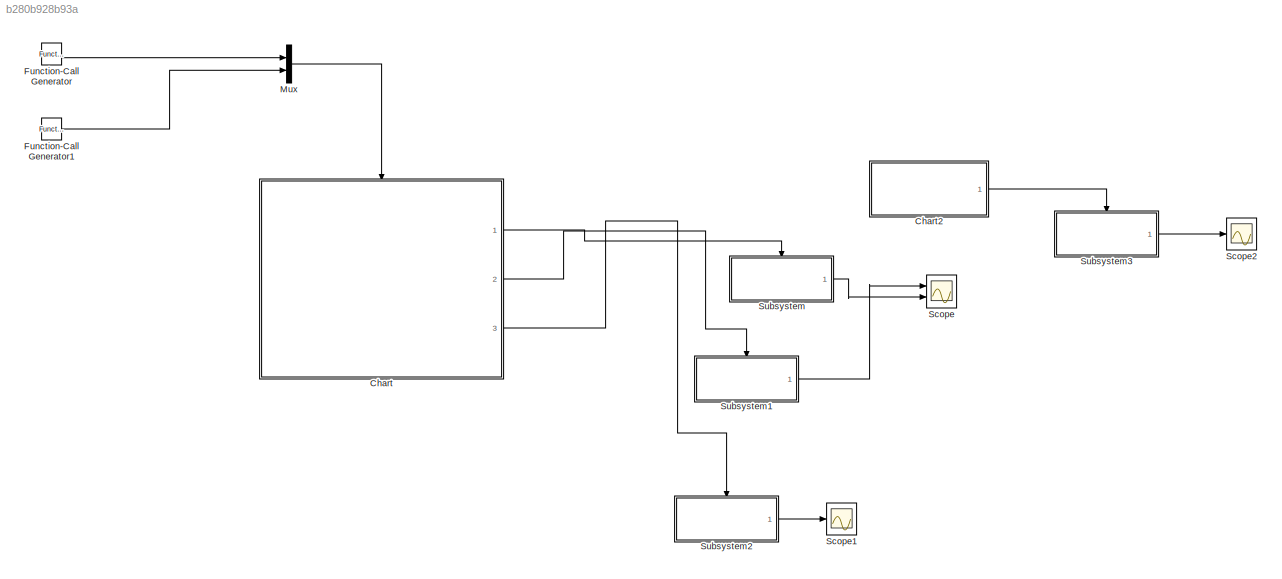
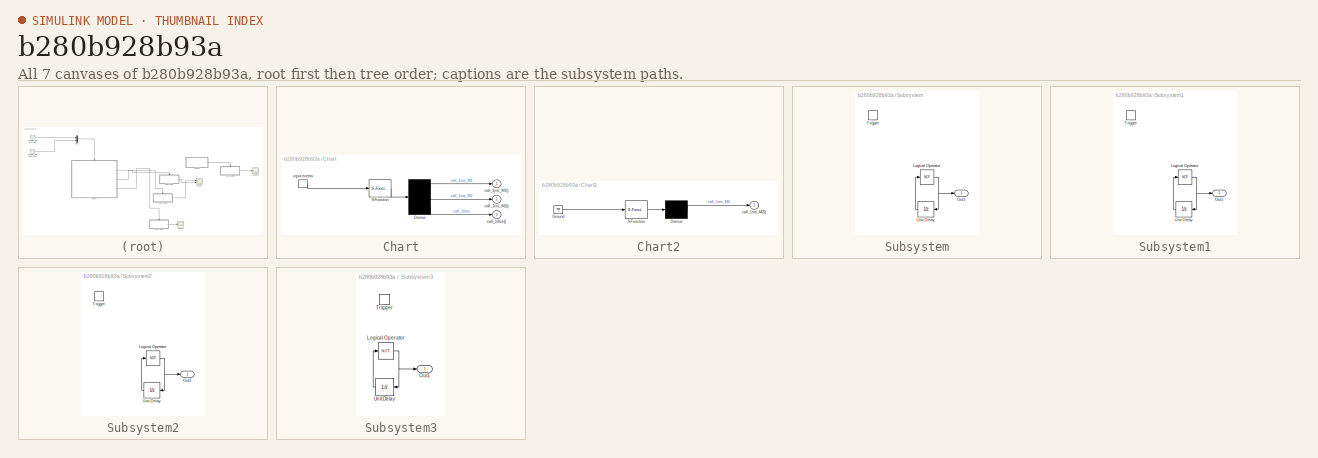
[diagram: thumbnail index - all 7 canvases of the model, root first then tree order]
MODEL slx_b280b928b93a
KIND model
CONFIG AbsTol = auto
CONFIG EnableMultiTasking = off
CONFIG FixedStep = 10^-3
CONFIG MaxStep = auto
CONFIG MinStep = auto
CONFIG RelTol = 1e-3
CONFIG SampleTimeConstraint = Unconstrained
CONFIG SolverName = FixedStepDiscrete
CONFIG StartTime = 0.0
CONFIG StopTime = 10.0
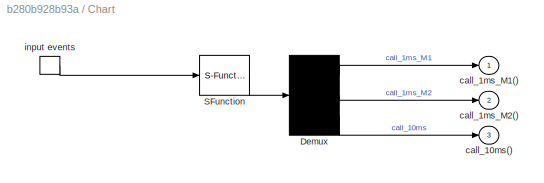
BLOCK [SubSystem] Chart
  ErrorFcn = Stateflow.Translate.translate
  PermitHierarchicalResolution = ExplicitOnly
  Ports = [0, 3, 0, 1]
  RequestExecContextInheritance = off
  SFBlockType = Chart
  ShowPortLabels = FromPortBlockName
  TreatAsAtomicUnit = on
BLOCK [Demux] Chart/ Demux 
  Outputs = 3
  Ports = [1, 3]
BLOCK [S-Function] Chart/ SFunction 
  EnableBusSupport = on
  FunctionName = sf_sfun
  PortCounts = [1 1]
  Ports = [1, 1]
  SFcnIsStateOwnerBlock = off
  SFunctionDeploymentMode = off
  Tag = Stateflow S-Function 3
BLOCK [Outport] Chart/call_10ms()
  Port = 3
BLOCK [Outport] Chart/call_1ms_M1()
BLOCK [Outport] Chart/call_1ms_M2()
  Port = 2
BLOCK [TriggerPort] Chart/input events
  Ports = [0, 1]
  ShowOutputPort = on
  StatesWhenEnabling = held
  TriggerType = function-call
  VariantControl = (inherit)
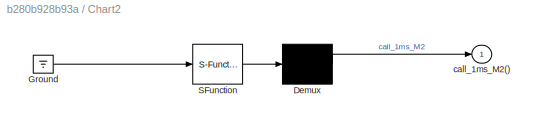
BLOCK [SubSystem] Chart2
  ErrorFcn = Stateflow.Translate.translate
  PermitHierarchicalResolution = ExplicitOnly
  Ports = [0, 1]
  RequestExecContextInheritance = off
  SFBlockType = Chart
  TreatAsAtomicUnit = on
BLOCK [Demux] Chart2/ Demux 
  Outputs = 1
  Ports = [1, 1]
BLOCK [Ground] Chart2/ Ground 
BLOCK [S-Function] Chart2/ SFunction 
  EnableBusSupport = on
  FunctionName = sf_sfun
  PortCounts = [1 1]
  Ports = [1, 1]
  SFcnIsStateOwnerBlock = off
  SFunctionDeploymentMode = off
  Tag = Stateflow S-Function 2
BLOCK [Outport] Chart2/call_1ms_M2()
BLOCK [Reference] Function-Call Generator  REF=simulink/Ports &
Subsystems/Function-Call
Generator
  Ports = [0, 1]
  SourceBlock = simulink/Ports &\nSubsystems/Function-Call\nGenerator
  SourceProductBaseCode = SL
  SourceType = Function-Call Generator
BLOCK [Reference] Function-Call Generator1  REF=simulink/Ports &
Subsystems/Function-Call
Generator
  Ports = [0, 1]
  SourceBlock = simulink/Ports &\nSubsystems/Function-Call\nGenerator
  SourceProductBaseCode = SL
  SourceType = Function-Call Generator
BLOCK [Mux] Mux
  DisplayOption = bar
  Inputs = 2
  Ports = [2, 1]
BLOCK [Scope] Scope
  Floating = off
  NumInputPorts = 2
  Ports = [2]
  ScopeSpecificationString = Simulink.scopes.TimeScopeBlockCfg('CurrentConfiguration', extmgr.ConfigurationSet(extmgr.Configuration('Core','General UI',true),extmgr.Configuration('Core','Source UI',true),extmgr.Configuration('Sources','WiredSimulink',true),extmgr.Configuration('Visuals','Time Domain',true,'SerializedDisplays',{struct('MinYLimReal','-0.125','MaxYLimReal','1.125','YLabelReal','','MinYLimMag','0.00000','MaxYLimM...<+1472ch>
BLOCK [Scope] Scope1
  Floating = off
  NumInputPorts = 1
  Ports = [1]
  ScopeSpecificationString = Simulink.scopes.TimeScopeBlockCfg('CurrentConfiguration', extmgr.ConfigurationSet(extmgr.Configuration('Core','General UI',true),extmgr.Configuration('Core','Source UI',true),extmgr.Configuration('Sources','WiredSimulink',true,'DataLoggingVariableName','ScopeData1'),extmgr.Configuration('Visuals','Time Domain',true,'SerializedDisplays',{struct('MinYLimReal','-0.125','MaxYLimReal','1.125','YLabelRe...<+1438ch>
BLOCK [Scope] Scope2
  Floating = off
  NumInputPorts = 1
  Ports = [1]
  ScopeSpecificationString = Simulink.scopes.TimeScopeBlockCfg('CurrentConfiguration', extmgr.ConfigurationSet(extmgr.Configuration('Core','General UI',true),extmgr.Configuration('Core','Source UI',true),extmgr.Configuration('Sources','WiredSimulink',true,'DataLoggingVariableName','ScopeData2'),extmgr.Configuration('Visuals','Time Domain',true,'SerializedDisplays',{struct('MinYLimReal','-0.125','MaxYLimReal','1.125','YLabelRe...<+1463ch>
BLOCK [SubSystem] Subsystem
  Ports = [0, 1, 0, 1]
  RequestExecContextInheritance = off
BLOCK [Logic] Subsystem/Logical Operator
  AllPortsSameDT = off
  Operator = NOT
  OutDataTypeStr = boolean
  Ports = [1, 1]
BLOCK [Outport] Subsystem/Out1
BLOCK [TriggerPort] Subsystem/Trigger
  PortDimensions = 1
  Ports = []
  StatesWhenEnabling = held
  TriggerType = function-call
  VariantControl = (inherit)
BLOCK [UnitDelay] Subsystem/Unit Delay
  HasFrameUpgradeWarning = on
  SampleTime = -1
BLOCK [SubSystem] Subsystem1
  Ports = [0, 1, 0, 1]
  RequestExecContextInheritance = off
BLOCK [Logic] Subsystem1/Logical Operator
  AllPortsSameDT = off
  Operator = NOT
  OutDataTypeStr = boolean
  Ports = [1, 1]
BLOCK [Outport] Subsystem1/Out1
BLOCK [TriggerPort] Subsystem1/Trigger
  PortDimensions = 1
  Ports = []
  StatesWhenEnabling = held
  TriggerType = function-call
  VariantControl = (inherit)
BLOCK [UnitDelay] Subsystem1/Unit Delay
  HasFrameUpgradeWarning = on
  SampleTime = -1
BLOCK [SubSystem] Subsystem2
  Ports = [0, 1, 0, 1]
  RequestExecContextInheritance = off
BLOCK [Logic] Subsystem2/Logical Operator
  AllPortsSameDT = off
  Operator = NOT
  OutDataTypeStr = boolean
  Ports = [1, 1]
BLOCK [Outport] Subsystem2/Out1
BLOCK [TriggerPort] Subsystem2/Trigger
  PortDimensions = 1
  Ports = []
  StatesWhenEnabling = held
  TriggerType = function-call
  VariantControl = (inherit)
BLOCK [UnitDelay] Subsystem2/Unit Delay
  HasFrameUpgradeWarning = on
  SampleTime = -1
BLOCK [SubSystem] Subsystem3
  Ports = [0, 1, 0, 1]
  RequestExecContextInheritance = off
BLOCK [Logic] Subsystem3/Logical Operator
  AllPortsSameDT = off
  Operator = NOT
  OutDataTypeStr = boolean
  Ports = [1, 1]
BLOCK [Outport] Subsystem3/Out1
BLOCK [TriggerPort] Subsystem3/Trigger
  PortDimensions = 1
  Ports = []
  StatesWhenEnabling = held
  TriggerType = function-call
  VariantControl = (inherit)
BLOCK [UnitDelay] Subsystem3/Unit Delay
  HasFrameUpgradeWarning = on
  SampleTime = -1
LINE Chart2:1 -> Subsystem3:trigger
LINE Chart:1 -> Subsystem:trigger
LINE Chart:2 -> Subsystem1:trigger
LINE Chart:3 -> Subsystem2:trigger
LINE Function-Call Generator1:1 -> Mux:2
LINE Function-Call Generator:1 -> Mux:1
LINE Mux:1 -> Chart:trigger
NET Subsystem/Logical Operator:1 -> Subsystem/Out1:1, Subsystem/Unit Delay:1
LINE Subsystem/Unit Delay:1 -> Subsystem/Logical Operator:1
NET Subsystem1/Logical Operator:1 -> Subsystem1/Out1:1, Subsystem1/Unit Delay:1
LINE Subsystem1/Unit Delay:1 -> Subsystem1/Logical Operator:1
LINE Subsystem1:1 -> Scope:1
NET Subsystem2/Logical Operator:1 -> Subsystem2/Out1:1, Subsystem2/Unit Delay:1
LINE Subsystem2/Unit Delay:1 -> Subsystem2/Logical Operator:1
LINE Subsystem2:1 -> Scope1:1
NET Subsystem3/Logical Operator:1 -> Subsystem3/Out1:1, Subsystem3/Unit Delay:1
LINE Subsystem3/Unit Delay:1 -> Subsystem3/Logical Operator:1
LINE Subsystem3:1 -> Scope2:1
LINE Subsystem:1 -> Scope:2
note: NET lines group one-source signal fan-out (src -> all destinations, sorted); 1:1 wires keep LINE
CHART Chart2 states=0 transitions=2
CHART Chart states=0 transitions=6
CHART  states=0 transitions=0
CHART  states=0 transitions=0
